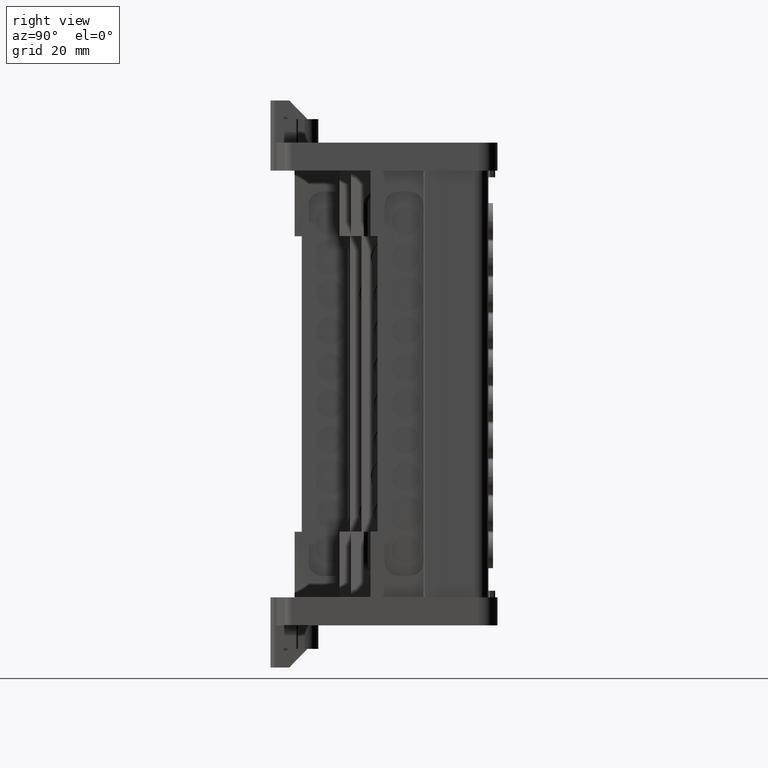
[diagram: clean part render]
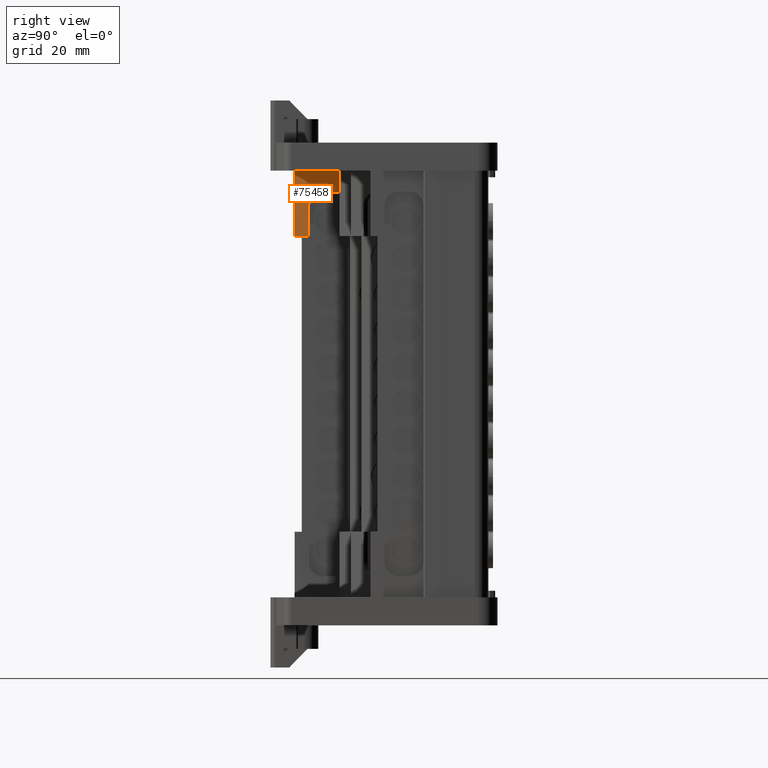
[diagram: same view with one face highlighted and labeled with its STEP entity id]
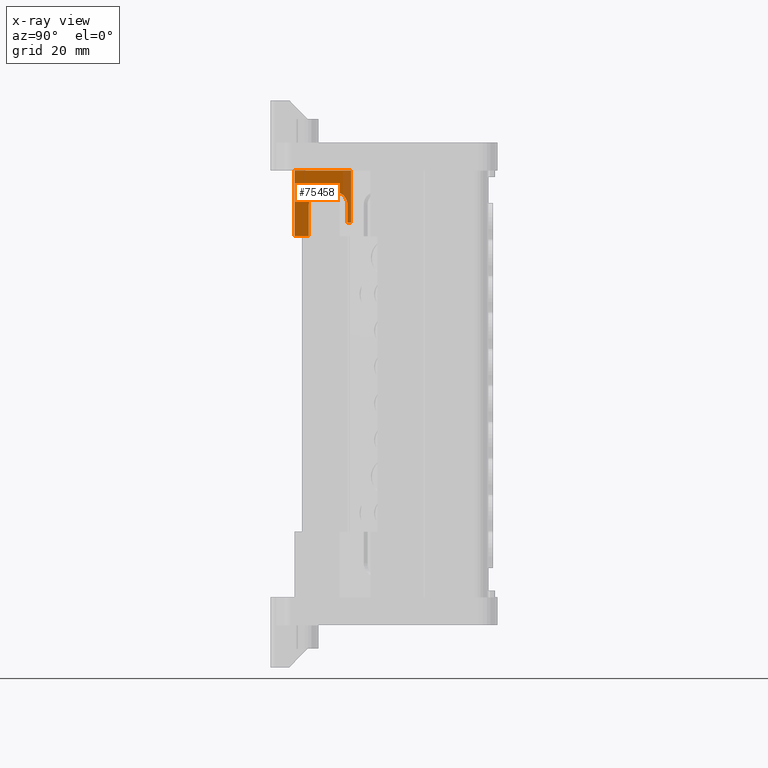
[diagram: x-ray of the same camera — body ghosted, the highlighted face saturated]
A machine part, right view. The second image highlights one B-rep face of the part: STEP entity #75458.
The next image is the same camera in x-ray: the body ghosted, the highlighted face saturated — about 15% of this face is hidden behind the body in this view.
In plain terms, the highlighted planar face has unit normal (1, 0, -0).
Its self-contained STEP definition (entity closure, byte-faithful):
#535 = ORIENTED_EDGE ( 'NONE', *, *, #15669, .T. ) ;
#548 = ORIENTED_EDGE ( 'NONE', *, *, #15942, .T. ) ;
#558 = ORIENTED_EDGE ( 'NONE', *, *, #9340, .T. ) ;
#570 = ORIENTED_EDGE ( 'NONE', *, *, #15921, .F. ) ;
#592 = ORIENTED_EDGE ( 'NONE', *, *, #15577, .T. ) ;
#602 = ORIENTED_EDGE ( 'NONE', *, *, #15910, .T. ) ;
#604 = ORIENTED_EDGE ( 'NONE', *, *, #15649, .T. ) ;
#618 = ORIENTED_EDGE ( 'NONE', *, *, #15703, .T. ) ;
#631 = ORIENTED_EDGE ( 'NONE', *, *, #15826, .T. ) ;
#637 = ORIENTED_EDGE ( 'NONE', *, *, #9521, .T. ) ;
#639 = ORIENTED_EDGE ( 'NONE', *, *, #15701, .T. ) ;
#2149 = B_SPLINE_CURVE_WITH_KNOTS ( 'NONE', 3,
 ( #32496, #32507, #32510, #32513 ),
 .UNSPECIFIED., .F., .F.,
 ( 4, 4 ),
 ( 0.0000000000000000000, 1.000000000000000000 ),
 .UNSPECIFIED. ) ;
#9340 = EDGE_CURVE ( 'NONE', #84732, #84764, #53948, .T. ) ;
#9521 = EDGE_CURVE ( 'NONE', #84771, #84761, #54372, .T. ) ;
#15577 = EDGE_CURVE ( 'NONE', #84688, #84771, #30934, .T. ) ;
#15649 = EDGE_CURVE ( 'NONE', #84726, #84732, #27786, .T. ) ;
#15669 = EDGE_CURVE ( 'NONE', #84752, #84688, #27679, .T. ) ;
#15701 = EDGE_CURVE ( 'NONE', #84764, #84741, #27905, .T. ) ;
#15703 = EDGE_CURVE ( 'NONE', #84741, #84752, #22033, .T. ) ;
#15826 = EDGE_CURVE ( 'NONE', #83428, #83398, #31808, .T. ) ;
#15910 = EDGE_CURVE ( 'NONE', #83398, #84726, #32292, .T. ) ;
#15921 = EDGE_CURVE ( 'NONE', #83433, #84761, #32256, .T. ) ;
#15942 = EDGE_CURVE ( 'NONE', #83433, #83428, #2149, .T. ) ;
#22033 = CIRCLE ( 'NONE', #22065, 2.771999999999996700 ) ;
#22045 = VECTOR ( 'NONE', #27683, 1000.000000000000000 ) ;
#22061 = VECTOR ( 'NONE', #27958, 1000.000000000000000 ) ;
#22065 = AXIS2_PLACEMENT_3D ( 'NONE', #28075, #28088, #28082 ) ;
#22132 = VECTOR ( 'NONE', #31768, 1000.000000000000000 ) ;
#22161 = VECTOR ( 'NONE', #32318, 1000.000000000000000 ) ;
#22168 = VECTOR ( 'NONE', #32298, 1000.000000000000000 ) ;
#23177 = VECTOR ( 'NONE', #30995, 1000.000000000000000 ) ;
#23189 = VECTOR ( 'NONE', #27704, 1000.000000000000000 ) ;
#27678 = CARTESIAN_POINT ( 'NONE',  ( 365.7449546087416900, -109.9387539012284000, 12.62052800001114200 ) ) ;
#27679 = LINE ( 'NONE', #27820, #22045 ) ;
#27683 = DIRECTION ( 'NONE',  ( -3.469446950784518900E-018, -5.041723658430198100E-031, -1.000000000000000000 ) ) ;
#27704 = DIRECTION ( 'NONE',  ( 3.469446950784518900E-018, 5.041723658430198100E-031, 1.000000000000000000 ) ) ;
#27786 = LINE ( 'NONE', #27678, #23189 ) ;
#27820 = CARTESIAN_POINT ( 'NONE',  ( 365.7449546087404400, -101.6784645605705900, 12.62052800001114200 ) ) ;
#27844 = CARTESIAN_POINT ( 'NONE',  ( 365.7449546087424900, -115.8212248916804000, 91.74660800001129200 ) ) ;
#27905 = LINE ( 'NONE', #27844, #22061 ) ;
#27958 = DIRECTION ( 'NONE',  ( -1.453177907011995900E-013, 1.000000000000000000, 0.0000000000000000000 ) ) ;
#28075 = CARTESIAN_POINT ( 'NONE',  ( 365.7449546087409000, -104.4504645605705800, 88.97460800001128700 ) ) ;
#28082 = DIRECTION ( 'NONE',  ( -1.401796748264088300E-013, 1.000000000000000000, 0.0000000000000000000 ) ) ;
#28088 = DIRECTION ( 'NONE',  ( -1.000000000000000000, -1.453177907011995900E-013, 3.469446950784519600E-018 ) ) ;
#30878 = CARTESIAN_POINT ( 'NONE',  ( 365.7449546087424900, -115.8212248916804000, 85.20660800001130000 ) ) ;
#30934 = LINE ( 'NONE', #30878, #23177 ) ;
#30995 = DIRECTION ( 'NONE',  ( -1.453177907011995900E-013, 1.000000000000000000, 0.0000000000000000000 ) ) ;
#31768 = DIRECTION ( 'NONE',  ( -3.469446950784518900E-018, -5.041723658430198100E-031, -1.000000000000000000 ) ) ;
#31808 = LINE ( 'NONE', #31877, #22132 ) ;
#31877 = CARTESIAN_POINT ( 'NONE',  ( 365.7449546087421500, -112.9672203543716800, 12.62052800001114200 ) ) ;
#32256 = LINE ( 'NONE', #32295, #22168 ) ;
#32292 = LINE ( 'NONE', #32323, #22161 ) ;
#32295 = CARTESIAN_POINT ( 'NONE',  ( 365.7449546087428300, -169.2347410558980100, 96.29460800001189100 ) ) ;
#32298 = DIRECTION ( 'NONE',  ( 0.0000000000000000000, 1.000000000000000000, 0.0000000000000000000 ) ) ;
#32318 = DIRECTION ( 'NONE',  ( -0.0000000000000000000, 1.000000000000000000, 0.0000000000000000000 ) ) ;
#32323 = CARTESIAN_POINT ( 'NONE',  ( 365.7449546087443100, -85.77389040316119000, 82.27722964847249900 ) ) ;
#32496 = CARTESIAN_POINT ( 'NONE',  ( 365.7449546087423200, -112.9479676076168300, 96.29460800001156400 ) ) ;
#32507 = CARTESIAN_POINT ( 'NONE',  ( 365.7449546087420900, -112.9543851898684700, 96.29460800001147900 ) ) ;
#32510 = CARTESIAN_POINT ( 'NONE',  ( 365.7449546087421500, -112.9608027721200600, 96.29460800001147900 ) ) ;
#32513 = CARTESIAN_POINT ( 'NONE',  ( 365.7434387441210200, -112.9671047508216900, 96.29460800001149300 ) ) ;
#52750 = VECTOR ( 'NONE', #54374, 1000.000000000000000 ) ;
#53943 = AXIS2_PLACEMENT_3D ( 'NONE', #54036, #54037, #54022 ) ;
#53948 = CIRCLE ( 'NONE', #53943, 2.771999999999996700 ) ;
#54022 = DIRECTION ( 'NONE',  ( -1.401796748264088300E-013, 1.000000000000000000, 0.0000000000000000000 ) ) ;
#54036 = CARTESIAN_POINT ( 'NONE',  ( 365.7449546087415200, -107.1667539012285700, 88.97460800001128700 ) ) ;
#54037 = DIRECTION ( 'NONE',  ( -1.000000000000000000, -1.453177907011995900E-013, 3.469446950784519600E-018 ) ) ;
#54343 = CARTESIAN_POINT ( 'NONE',  ( 365.7449546087403300, -100.9035794228214700, 12.62052800001114200 ) ) ;
#54372 = LINE ( 'NONE', #54343, #52750 ) ;
#54374 = DIRECTION ( 'NONE',  ( 3.469446950784518900E-018, 5.041723658430198100E-031, 1.000000000000000000 ) ) ;
#60468 = EDGE_LOOP ( 'NONE', ( #570, #548, #631, #602, #604, #558, #639, #618, #535, #592, #637 ) ) ;
#63575 = AXIS2_PLACEMENT_3D ( 'NONE', #78607, #78622, #78595 ) ;
#75458 = ADVANCED_FACE ( 'NONE', ( #78608 ), #78597, .T. ) ;
#78595 = DIRECTION ( 'NONE',  ( -1.453177907011995900E-013, 1.000000000000000000, 0.0000000000000000000 ) ) ;
#78597 = PLANE ( 'NONE',  #63575 ) ;
#78607 = CARTESIAN_POINT ( 'NONE',  ( 365.7449546087424900, -115.8212248916804000, 12.62052800001114200 ) ) ;
#78608 = FACE_OUTER_BOUND ( 'NONE', #60468, .T. ) ;
#78622 = DIRECTION ( 'NONE',  ( 1.000000000000000000, 1.453177907011995900E-013, -3.469446950784518900E-018 ) ) ;
#83398 = VERTEX_POINT ( 'NONE', #106985 ) ;
#83428 = VERTEX_POINT ( 'NONE', #107123 ) ;
#83433 = VERTEX_POINT ( 'NONE', #107058 ) ;
#84688 = VERTEX_POINT ( 'NONE', #106690 ) ;
#84726 = VERTEX_POINT ( 'NONE', #106639 ) ;
#84732 = VERTEX_POINT ( 'NONE', #106589 ) ;
#84741 = VERTEX_POINT ( 'NONE', #106757 ) ;
#84752 = VERTEX_POINT ( 'NONE', #106724 ) ;
#84761 = VERTEX_POINT ( 'NONE', #106721 ) ;
#84764 = VERTEX_POINT ( 'NONE', #106727 ) ;
#84771 = VERTEX_POINT ( 'NONE', #106755 ) ;
#106589 = CARTESIAN_POINT ( 'NONE',  ( 365.7449546087418100, -109.9387539012282800, 88.97460800001128700 ) ) ;
#106639 = CARTESIAN_POINT ( 'NONE',  ( 365.7449546087416900, -109.9387539012284000, 82.27722964847249900 ) ) ;
#106690 = CARTESIAN_POINT ( 'NONE',  ( 365.7449546087405000, -101.6784645605705900, 85.20660800001130000 ) ) ;
#106721 = CARTESIAN_POINT ( 'NONE',  ( 365.7449546087415800, -100.9035794228215200, 96.29460800001072600 ) ) ;
#106724 = CARTESIAN_POINT ( 'NONE',  ( 365.7449546087404400, -101.6784645605705900, 88.97460800001128700 ) ) ;
#106727 = CARTESIAN_POINT ( 'NONE',  ( 365.7449546087413500, -107.1667539012286500, 91.74660800001129200 ) ) ;
#106755 = CARTESIAN_POINT ( 'NONE',  ( 365.7449546087403300, -100.9035794228215200, 85.20660800001130000 ) ) ;
#106757 = CARTESIAN_POINT ( 'NONE',  ( 365.7449546087409000, -104.4504645605705200, 91.74660800001129200 ) ) ;
#106985 = CARTESIAN_POINT ( 'NONE',  ( 365.7449546087432300, -112.9672203543715300, 82.27722964847249900 ) ) ;
#107058 = CARTESIAN_POINT ( 'NONE',  ( 365.7449546087423200, -112.9479676076168300, 96.29460800001156400 ) ) ;
#107123 = CARTESIAN_POINT ( 'NONE',  ( 365.7434387441210200, -112.9671047508216900, 96.29460800001149300 ) ) ;